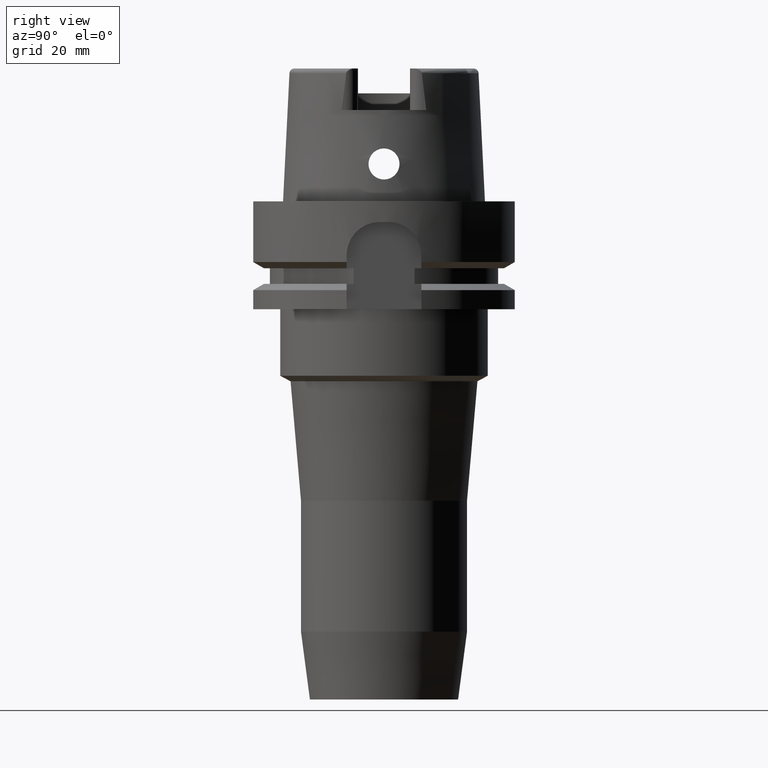
[diagram: clean part render]
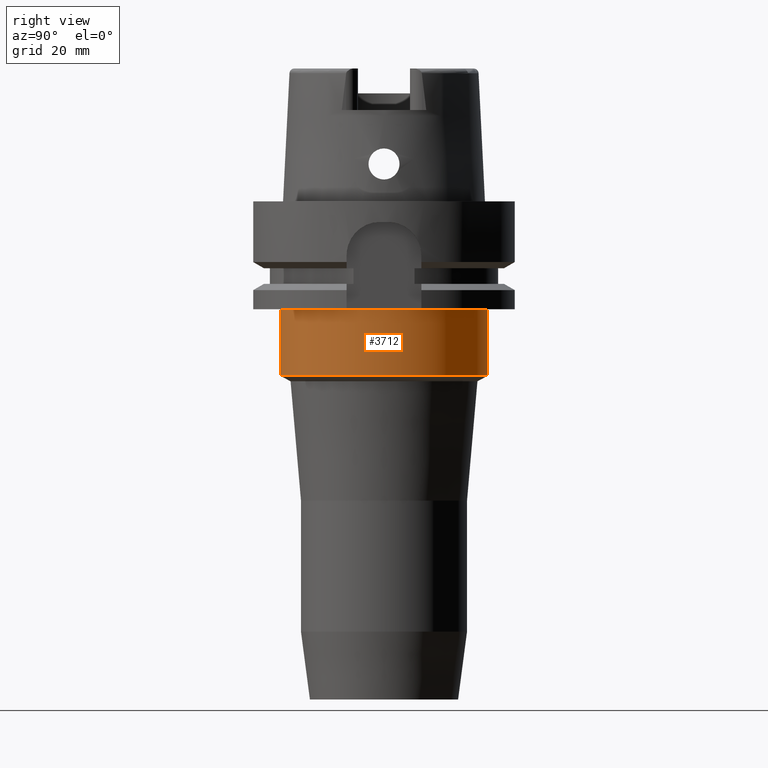
[diagram: same view with one face highlighted and labeled with its STEP entity id]
A machine part, right view. The second image highlights one B-rep face of the part: STEP entity #3712.
In plain terms, the highlighted cylindrical surface (partial cylindrical patch) has radius 25 mm, axis along (0, 0, 1).
Its self-contained STEP definition (entity closure, byte-faithful):
#1046=CARTESIAN_POINT('',(0.E0,0.E0,-2.6E1));
#1047=DIRECTION('',(0.E0,0.E0,-1.E0));
#1048=DIRECTION('',(0.E0,1.E0,0.E0));
#1049=AXIS2_PLACEMENT_3D('',#1046,#1047,#1048);
#1613=DIRECTION('',(0.E0,1.398881011028E-14,-1.E0));
#1614=VECTOR('',#1613,1.6E1);
#1615=CARTESIAN_POINT('',(0.E0,-2.5E1,-2.6E1));
#1616=LINE('',#1615,#1614);
#1620=DIRECTION('',(0.E0,-1.398881011028E-14,-1.E0));
#1621=VECTOR('',#1620,1.6E1);
#1622=CARTESIAN_POINT('',(0.E0,2.5E1,-2.6E1));
#1623=LINE('',#1622,#1621);
#1634=CARTESIAN_POINT('',(0.E0,0.E0,-4.2E1));
#1635=DIRECTION('',(0.E0,0.E0,1.E0));
#1636=DIRECTION('',(0.E0,-1.E0,0.E0));
#1637=AXIS2_PLACEMENT_3D('',#1634,#1635,#1636);
#2480=CARTESIAN_POINT('',(0.E0,2.5E1,-4.2E1));
#2481=VERTEX_POINT('',#2480);
#2482=CARTESIAN_POINT('',(0.E0,-2.5E1,-4.2E1));
#2483=VERTEX_POINT('',#2482);
#2484=CARTESIAN_POINT('',(0.E0,2.5E1,-2.6E1));
#2485=VERTEX_POINT('',#2484);
#2486=CARTESIAN_POINT('',(0.E0,-2.5E1,-2.6E1));
#2487=VERTEX_POINT('',#2486);
#3700=CARTESIAN_POINT('',(0.E0,0.E0,-1.276E2));
#3701=DIRECTION('',(0.E0,0.E0,1.E0));
#3702=DIRECTION('',(0.E0,1.E0,0.E0));
#3703=AXIS2_PLACEMENT_3D('',#3700,#3701,#3702);
#3704=CYLINDRICAL_SURFACE('',#3703,2.5E1);
#3705=ORIENTED_EDGE('',*,*,#3690,.T.);
#3707=ORIENTED_EDGE('',*,*,#3706,.F.);
#3708=ORIENTED_EDGE('',*,*,#3693,.F.);
#3709=ORIENTED_EDGE('',*,*,#3272,.F.);
#3710=EDGE_LOOP('',(#3705,#3707,#3708,#3709));
#3711=FACE_OUTER_BOUND('',#3710,.F.);
#1050=CIRCLE('',#1049,2.5E1);
#1638=CIRCLE('',#1637,2.5E1);
#3272=EDGE_CURVE('',#2485,#2487,#1050,.T.);
#3690=EDGE_CURVE('',#2485,#2481,#1623,.T.);
#3693=EDGE_CURVE('',#2487,#2483,#1616,.T.);
#3706=EDGE_CURVE('',#2483,#2481,#1638,.T.);
#3712=ADVANCED_FACE('',(#3711),#3704,.T.);